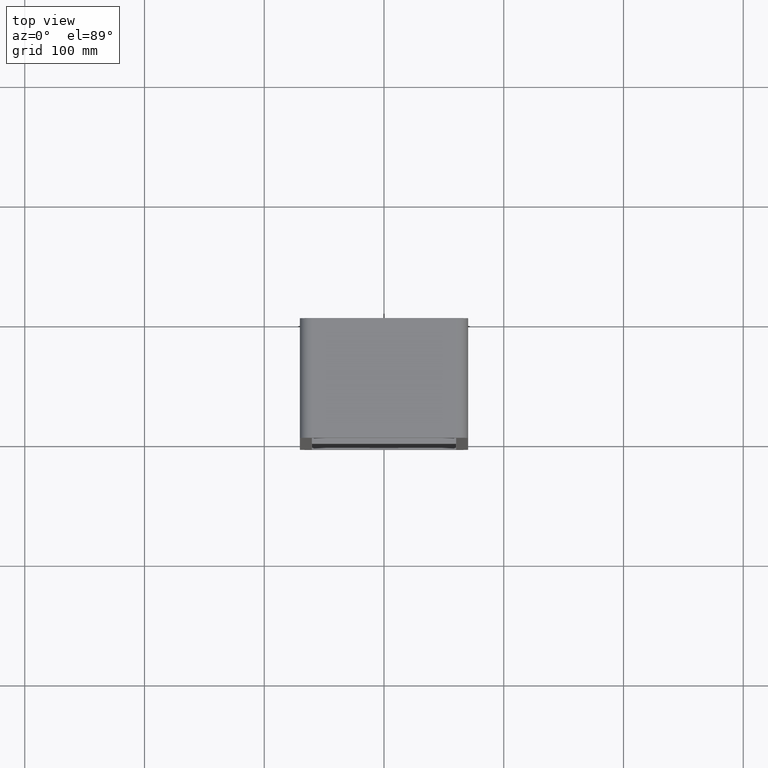
[diagram: clean part render]
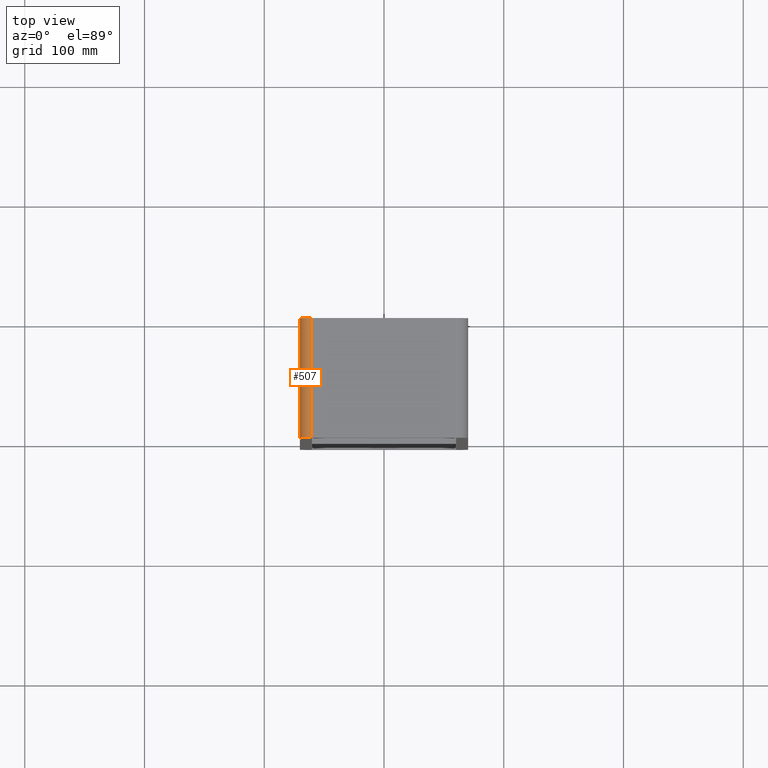
[diagram: same view with one face highlighted and labeled with its STEP entity id]
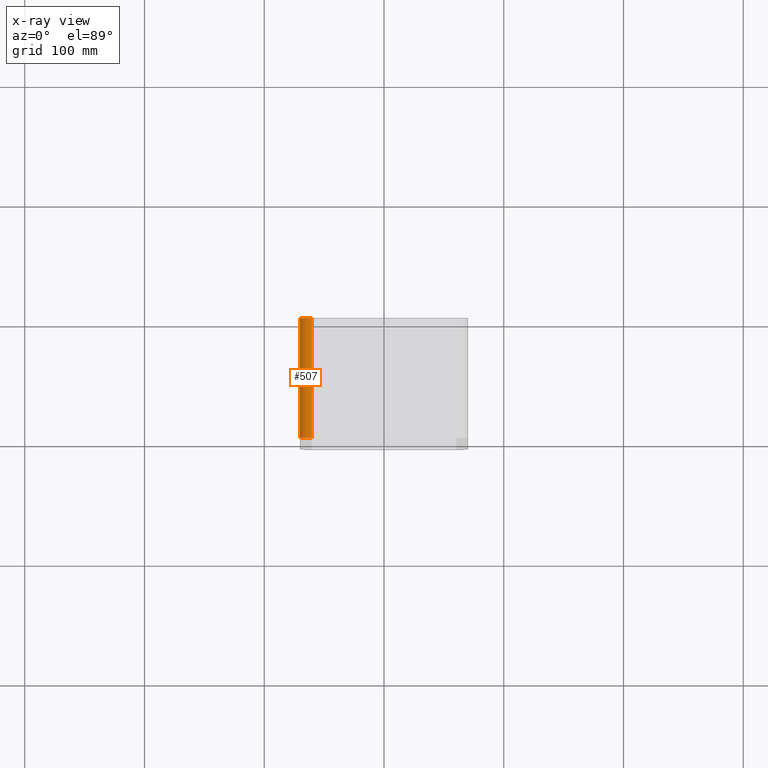
[diagram: x-ray of the same camera — body ghosted, the highlighted face saturated]
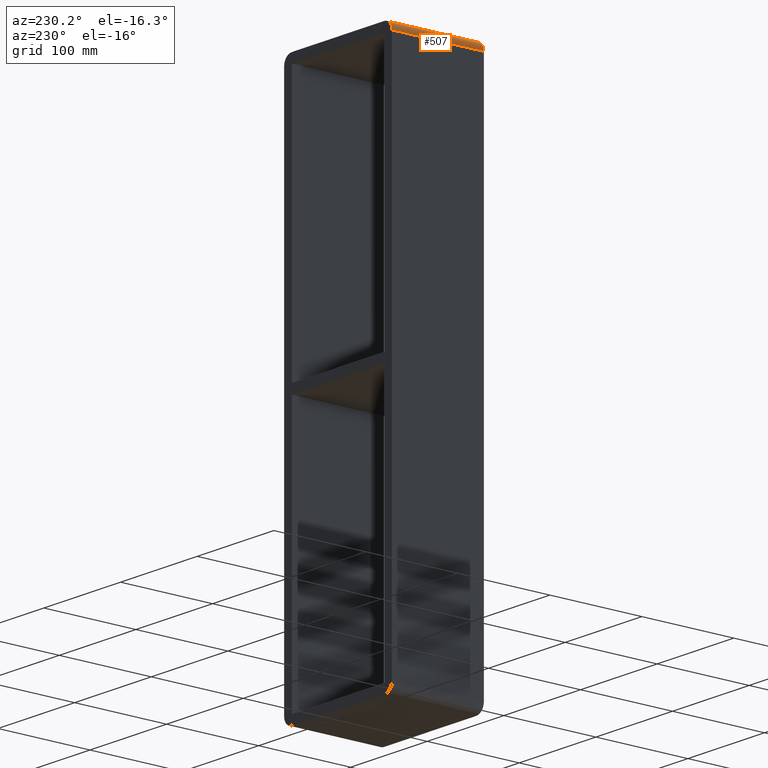
[diagram: same view with one face highlighted and labeled with its STEP entity id]
A machine part, top view. The second image highlights one B-rep face of the part: STEP entity #507.
The next image is the same camera in x-ray: the body ghosted, the highlighted face saturated — about 0% of this face is hidden behind the body in this view.
A second angle (auxiliary view) of the same face is appended — the face is thin or edge-on in the first view.
In plain terms, the highlighted cylindrical surface (edge-blend (fillet) strip) has radius 10 mm, axis along (0, 1, 0).
Its self-contained STEP definition (entity closure, byte-faithful):
#306=CARTESIAN_POINT('',(-60.25,-3.0,293.0));
#307=VERTEX_POINT('',#306);
#314=CARTESIAN_POINT('',(-70.25,-3.0,283.0));
#315=VERTEX_POINT('',#314);
#316=CARTESIAN_POINT('',(-60.25,-3.0,283.0));
#317=DIRECTION('',(0.0,1.0,0.0));
#318=DIRECTION('',(-0.707106781186547,0.0,0.707106781186547));
#319=AXIS2_PLACEMENT_3D('',#316,#317,#318);
#320=CIRCLE('',#319,9.999999999999998);
#321=EDGE_CURVE('',#315,#307,#320,.T.);
#466=CARTESIAN_POINT('',(-70.25,97.0,283.0));
#467=VERTEX_POINT('',#466);
#468=CARTESIAN_POINT('',(-70.25,97.0,283.0));
#469=DIRECTION('',(0.0,-1.0,0.0));
#470=VECTOR('',#469,100.0);
#471=LINE('',#468,#470);
#472=EDGE_CURVE('',#467,#315,#471,.T.);
#483=CARTESIAN_POINT('',(-60.25,0.0,283.0));
#484=DIRECTION('',(0.0,1.0,0.0));
#485=DIRECTION('',(-0.707106781186547,0.0,0.707106781186547));
#486=AXIS2_PLACEMENT_3D('',#483,#484,#485);
#487=CYLINDRICAL_SURFACE('',#486,10.0);
#488=CARTESIAN_POINT('',(-60.25,97.0,293.0));
#489=VERTEX_POINT('',#488);
#490=CARTESIAN_POINT('',(-60.25,97.0,283.0));
#491=DIRECTION('',(0.0,-1.0,0.0));
#492=DIRECTION('',(-0.707106781186547,0.0,0.707106781186547));
#493=AXIS2_PLACEMENT_3D('',#490,#491,#492);
#494=CIRCLE('',#493,9.999999999999998);
#495=EDGE_CURVE('',#489,#467,#494,.T.);
#496=ORIENTED_EDGE('',*,*,#495,.T.);
#497=ORIENTED_EDGE('',*,*,#472,.T.);
#498=ORIENTED_EDGE('',*,*,#321,.T.);
#499=CARTESIAN_POINT('',(-60.25,-3.0,293.0));
#500=DIRECTION('',(0.0,1.0,0.0));
#501=VECTOR('',#500,100.0);
#502=LINE('',#499,#501);
#503=EDGE_CURVE('',#307,#489,#502,.T.);
#504=ORIENTED_EDGE('',*,*,#503,.T.);
#505=EDGE_LOOP('',(#496,#497,#498,#504));
#506=FACE_OUTER_BOUND('',#505,.T.);
#507=ADVANCED_FACE('',(#506),#487,.T.);